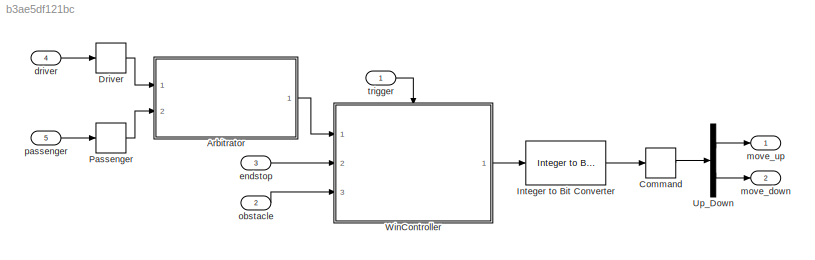
MODEL slx_b3ae5df121bc
KIND model
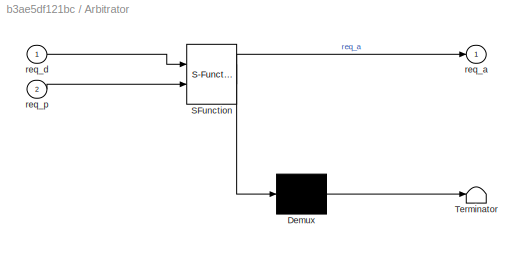
BLOCK [SubSystem] Arbitrator
  ErrorFcn = Stateflow.Translate.translate
  PermitHierarchicalResolution = ExplicitOnly
  Ports = [2, 1]
  RequestExecContextInheritance = off
  SFBlockType = MATLAB Function
  TreatAsAtomicUnit = on
BLOCK [Demux] Arbitrator/ Demux 
  Outputs = 1
  Ports = [1, 1]
BLOCK [S-Function] Arbitrator/ SFunction 
  EnableBusSupport = on
  FunctionName = sf_sfun
  PortCounts = [2 2]
  Ports = [2, 2]
  Tag = Stateflow S-Function PWC 1
BLOCK [Terminator] Arbitrator/ Terminator 
BLOCK [Outport] Arbitrator/req_a
  IconDisplay = Port number
BLOCK [Inport] Arbitrator/req_d
  IconDisplay = Port number
BLOCK [Inport] Arbitrator/req_p
  IconDisplay = Port number
  Port = 2
BLOCK [CombinatorialLogic] Command
  TruthTable = [0 0;0 1;1 0;0 0]
BLOCK [CombinatorialLogic] Driver
  TruthTable = [0;1;2;0;0;0;0;0]
BLOCK [Reference] Integer to Bit Converter  REF=commutil2/Integer to Bit
Converter
  Ports = [1, 1]
  SourceBlock = commutil2/Integer to Bit\nConverter
  SourceType = Integer to Bit Converter
  bitOrder = MSB first
  nbits = 2
  outDtype = Inherit via internal rule
  signedInputValues = Unsigned
BLOCK [CombinatorialLogic] Passenger
  TruthTable = [0;2;1;0;0;0;0;0]
BLOCK [Demux] Up_Down
  DisplayOption = bar
  Outputs = 2
  Ports = [1, 2]
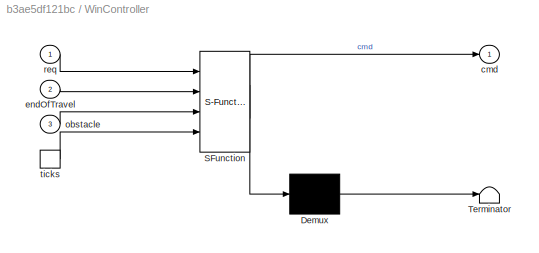
BLOCK [SubSystem] WinController
  ErrorFcn = Stateflow.Translate.translate
  PermitHierarchicalResolution = ExplicitOnly
  Ports = [3, 1, 0, 1]
  RequestExecContextInheritance = off
  SFBlockType = Chart
BLOCK [Demux] WinController/ Demux 
  Outputs = 1
  Ports = [1, 1]
BLOCK [S-Function] WinController/ SFunction 
  EnableBusSupport = on
  FunctionName = sf_sfun
  PortCounts = [4 2]
  Ports = [4, 2]
  Tag = Stateflow S-Function PWC 3
BLOCK [Terminator] WinController/ Terminator 
BLOCK [Outport] WinController/cmd
  IconDisplay = Port number
BLOCK [Inport] WinController/endOfTravel
  IconDisplay = Port number
  Port = 2
BLOCK [Inport] WinController/obstacle
  IconDisplay = Port number
  Port = 3
BLOCK [Inport] WinController/req
  IconDisplay = Port number
BLOCK [TriggerPort] WinController/ticks
  Ports = [0, 1]
  ShowOutputPort = on
  StatesWhenEnabling = held
  TriggerType = either
BLOCK [Inport] driver
  IconDisplay = Port number
  OutDataTypeStr = boolean
  Port = 4
BLOCK [Inport] endstop
  IconDisplay = Port number
  OutDataTypeStr = boolean
  Port = 3
BLOCK [Outport] move_down
  IconDisplay = Port number
  OutDataTypeStr = boolean
  Port = 2
BLOCK [Outport] move_up
  IconDisplay = Port number
  OutDataTypeStr = boolean
BLOCK [Inport] obstacle
  IconDisplay = Port number
  OutDataTypeStr = boolean
  Port = 2
BLOCK [Inport] passenger
  IconDisplay = Port number
  OutDataTypeStr = boolean
  Port = 5
BLOCK [Inport] trigger
  IconDisplay = Port number
  OutDataTypeStr = double
LINE Arbitrator:1 -> WinController:1
LINE Command:1 -> Up_Down:1
LINE Driver:1 -> Arbitrator:1
LINE Integer to Bit Converter:1 -> Command:1
LINE Passenger:1 -> Arbitrator:2
LINE Up_Down:1 -> move_up:1
LINE Up_Down:2 -> move_down:1
LINE WinController:1 -> Integer to Bit Converter:1
LINE driver:1 -> Driver:1
LINE endstop:1 -> WinController:2
LINE obstacle:1 -> WinController:3
LINE passenger:1 -> Passenger:1
LINE trigger:1 -> WinController:trigger
CHART Arbitrator states=1 transitions=1
  STATE_LABEL 'eML_blk_kernel()'
  STATE_LABEL 'SCRIPT:\nfunction req_a = WinRqArbitrator(req_d, req_p)\n%#codegen\n\nreq_a = 0;\n\nif req_p == 0 && req_d == 0\n    req_a = 0;\nelseif req_p  ~= 0 && req_d == 0\n    req_a = req_p;\nelseif req_p == 0 && req_d ~= 0 \n    req_a = req_d;\nelseif req_p ~= 0 && req_d ~= 0\n    req_a = 0;\nend\n% What if both are != stop\nend'
CHART WinController states=16 transitions=38
  STATE_LABEL 'winStates'
  STATE_LABEL 'Stopped\nen: cmd = 0;'
  STATE_LABEL 'unknownPos'
  STATE_LABEL 'fullyClosed'
  STATE_LABEL 'fullyOpen'
  STATE_LABEL 'partiallyOpen'
  STATE_LABEL 'movingUp\nen: cmd = 2;'
  STATE_LABEL 'movingUpBsc'
  STATE_LABEL 'movingUpX'
  STATE_LABEL 'mux_pp'
  STATE_LABEL 'mux_ppo'
  STATE_LABEL '[req ~= 4]'
  STATE_LABEL '[req == 4]'
  STATE_LABEL 'movingDown\nen: cmd = 1;'
  STATE_LABEL 'movingDownBsc'
  STATE_LABEL 'movingDownX'
  STATE_LABEL '[req == 3]'
  STATE_LABEL 'retracting\nen: cmd = 1;'
  STATE_LABEL 'coolDown\nen: cmd = 0;'
  STATE_LABEL '[req == 0]'
  STATE_LABEL '[endOfTravel  == 1]'
  STATE_LABEL '[req == 1]'
  STATE_LABEL '[req==3]'
  STATE_LABEL '[req == 2]'
  STATE_LABEL '[req == 4]'
  STATE_LABEL '[(req == 0)]'
  STATE_LABEL '[req == 0]'
  STATE_LABEL '[req == 1]'
  STATE_LABEL '[req == 2]'
  STATE_LABEL '[req == 4]'
  STATE_LABEL '[req == 3]'
  STATE_LABEL '[endOfTravel]'
  STATE_LABEL '[endOfTravel]'
  STATE_LABEL '[req == 1]'
  STATE_LABEL '[req == 2]'
  STATE_LABEL '[req == 3]'
  STATE_LABEL '[req == 4]'
  STATE_LABEL '[obstacle == 1]'
  STATE_LABEL '[after(10, sec)]'
  STATE_LABEL '[after(10, sec)]'
